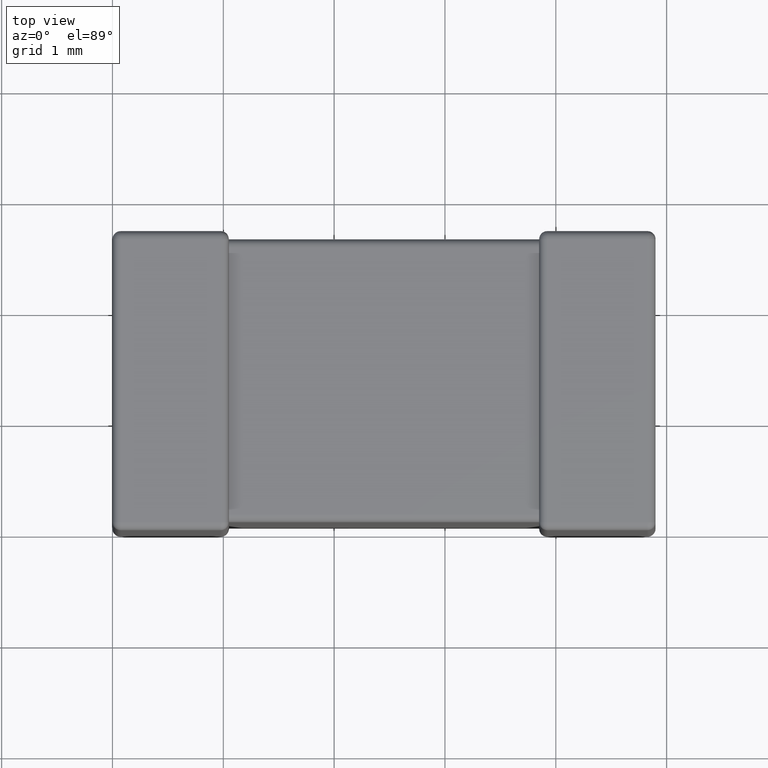
[diagram: clean part render]
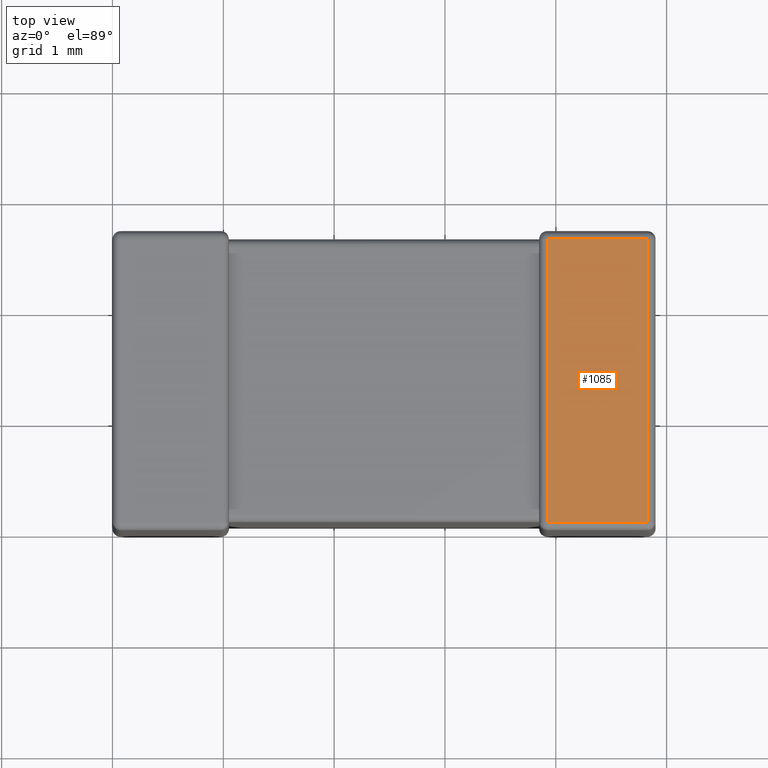
[diagram: same view with one face highlighted and labeled with its STEP entity id]
A machine part, top view. The second image highlights one B-rep face of the part: STEP entity #1085.
In plain terms, the highlighted planar face has unit normal (0, 0, -1).
Its self-contained STEP definition (entity closure, byte-faithful):
#62 = EDGE_CURVE ( 'NONE', #1403, #2046, #1249, .T. ) ;
#230 = CARTESIAN_POINT ( 'NONE',  ( 4.900000000000000355, 0.07280000000000000360, 0.000000000000000000 ) ) ;
#253 = CARTESIAN_POINT ( 'NONE',  ( 3.922800000000000509, 0.07280000000000000360, 0.000000000000000000 ) ) ;
#382 = CARTESIAN_POINT ( 'NONE',  ( 4.827200000000001268, 2.627200000000000202, 0.000000000000000000 ) ) ;
#417 = CARTESIAN_POINT ( 'NONE',  ( 4.900000000000000355, 0.000000000000000000, 0.000000000000000000 ) ) ;
#783 = DIRECTION ( 'NONE',  ( 0.000000000000000000, 0.000000000000000000, -1.000000000000000000 ) ) ;
#968 = ORIENTED_EDGE ( 'NONE', *, *, #2419, .T. ) ;
#1049 = EDGE_LOOP ( 'NONE', ( #968, #1977, #4137, #1968 ) ) ;
#1085 = ADVANCED_FACE ( 'NONE', ( #2507 ), #1535, .F. ) ;
#1139 = DIRECTION ( 'NONE',  ( -0.000000000000000000, -1.000000000000000000, -0.000000000000000000 ) ) ;
#1249 = LINE ( 'NONE', #1310, #3292 ) ;
#1310 = CARTESIAN_POINT ( 'NONE',  ( 4.827200000000001268, 0.000000000000000000, 0.000000000000000000 ) ) ;
#1358 = VECTOR ( 'NONE', #3740, 1000.000000000000000 ) ;
#1403 = VERTEX_POINT ( 'NONE', #3545 ) ;
#1439 = AXIS2_PLACEMENT_3D ( 'NONE', #417, #783, #2214 ) ;
#1535 = PLANE ( 'NONE',  #1439 ) ;
#1968 = ORIENTED_EDGE ( 'NONE', *, *, #4415, .T. ) ;
#1977 = ORIENTED_EDGE ( 'NONE', *, *, #3790, .T. ) ;
#1990 = VERTEX_POINT ( 'NONE', #2509 ) ;
#2046 = VERTEX_POINT ( 'NONE', #382 ) ;
#2214 = DIRECTION ( 'NONE',  ( -1.000000000000000000, 0.000000000000000000, -0.000000000000000000 ) ) ;
#2419 = EDGE_CURVE ( 'NONE', #1990, #3760, #2491, .T. ) ;
#2491 = LINE ( 'NONE', #2865, #3908 ) ;
#2507 = FACE_OUTER_BOUND ( 'NONE', #1049, .T. ) ;
#2509 = CARTESIAN_POINT ( 'NONE',  ( 3.922800000000000509, 2.627200000000000202, 0.000000000000000000 ) ) ;
#2668 = VECTOR ( 'NONE', #3729, 1000.000000000000000 ) ;
#2672 = DIRECTION ( 'NONE',  ( -0.000000000000000000, 1.000000000000000000, -0.000000000000000000 ) ) ;
#2865 = CARTESIAN_POINT ( 'NONE',  ( 3.922800000000000509, 0.000000000000000000, 0.000000000000000000 ) ) ;
#3006 = LINE ( 'NONE', #230, #1358 ) ;
#3062 = CARTESIAN_POINT ( 'NONE',  ( 4.900000000000000355, 2.627200000000000202, 0.000000000000000000 ) ) ;
#3292 = VECTOR ( 'NONE', #2672, 1000.000000000000000 ) ;
#3545 = CARTESIAN_POINT ( 'NONE',  ( 4.827200000000001268, 0.07280000000000000360, 0.000000000000000000 ) ) ;
#3729 = DIRECTION ( 'NONE',  ( -1.000000000000000000, 0.000000000000000000, 0.000000000000000000 ) ) ;
#3740 = DIRECTION ( 'NONE',  ( 1.000000000000000000, -0.000000000000000000, -0.000000000000000000 ) ) ;
#3760 = VERTEX_POINT ( 'NONE', #253 ) ;
#3790 = EDGE_CURVE ( 'NONE', #3760, #1403, #3006, .T. ) ;
#3908 = VECTOR ( 'NONE', #1139, 1000.000000000000000 ) ;
#4089 = LINE ( 'NONE', #3062, #2668 ) ;
#4137 = ORIENTED_EDGE ( 'NONE', *, *, #62, .T. ) ;
#4415 = EDGE_CURVE ( 'NONE', #2046, #1990, #4089, .T. ) ;